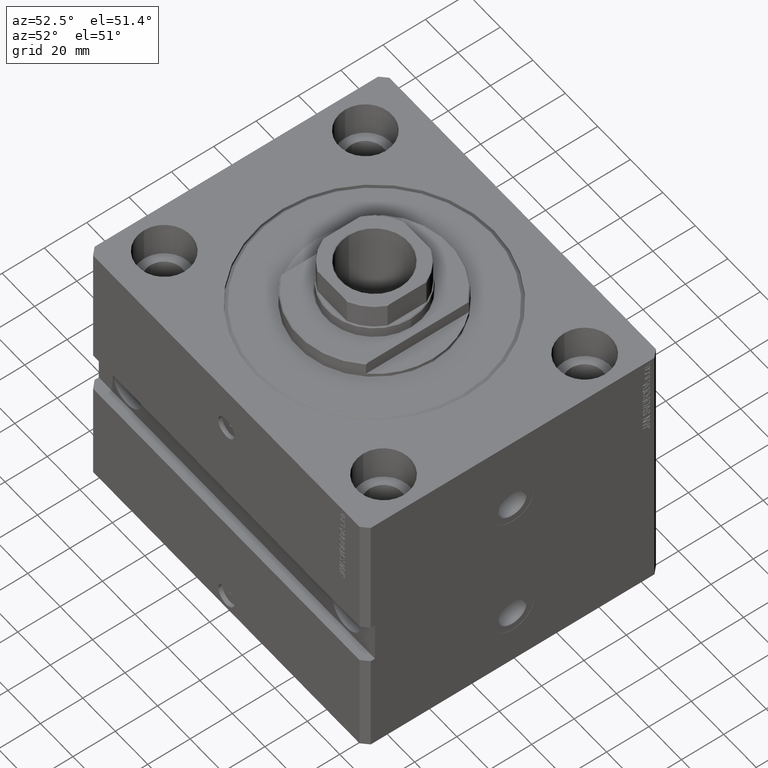
[diagram: clean part render]
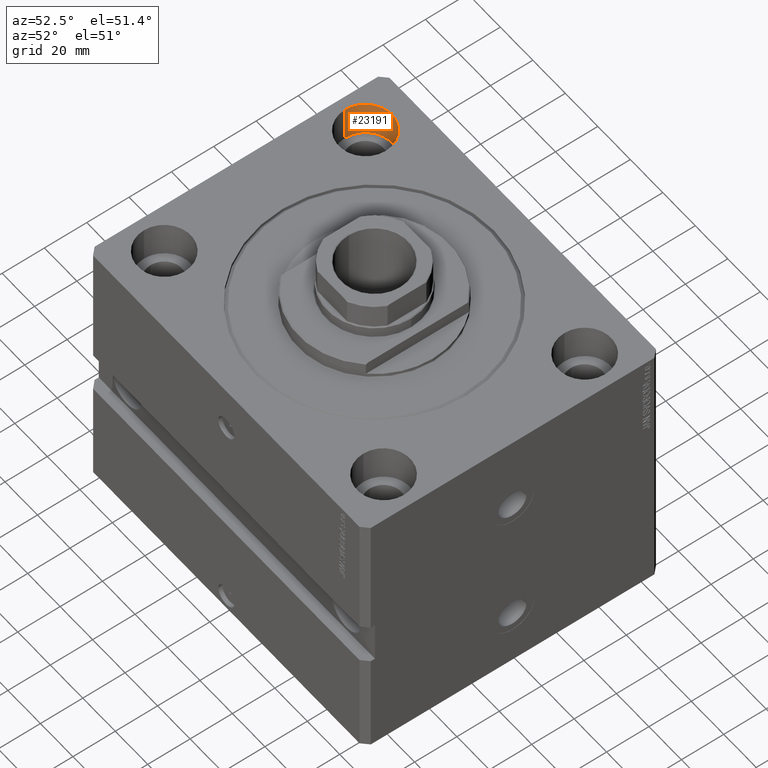
[diagram: same view with one face highlighted and labeled with its STEP entity id]
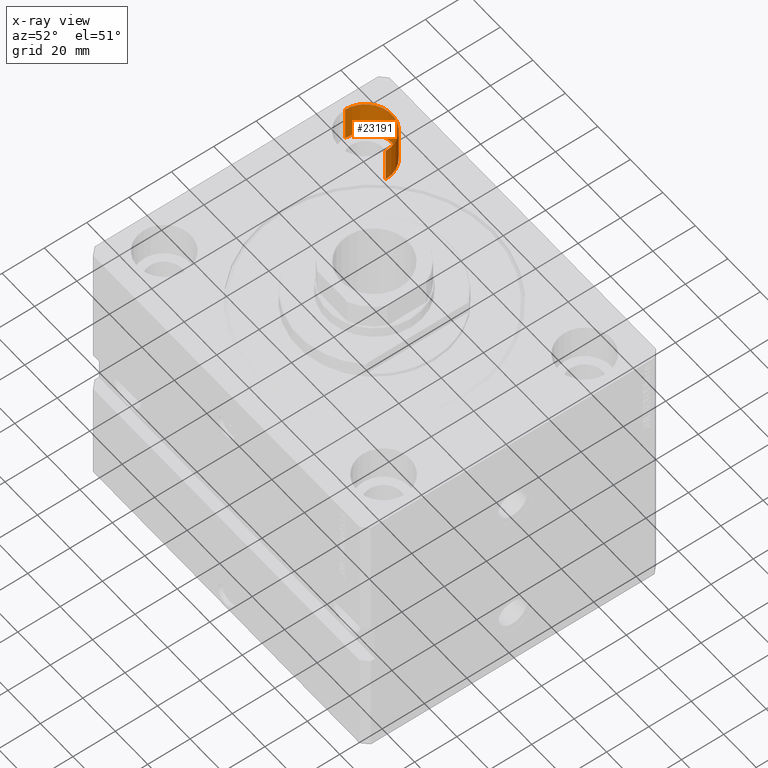
[diagram: x-ray of the same camera — body ghosted, the highlighted face saturated]
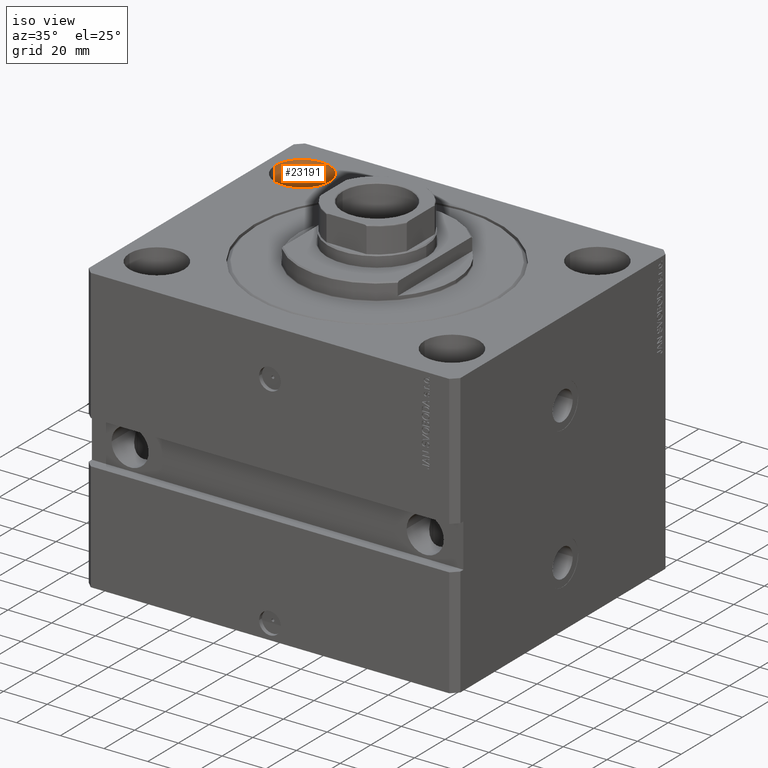
[diagram: same view with one face highlighted and labeled with its STEP entity id]
A machine part, auxiliary view. The second image highlights one B-rep face of the part: STEP entity #23191.
The next image is the same camera in x-ray: the body ghosted, the highlighted face saturated — about 0% of this face is hidden behind the body in this view.
A second angle (iso view) of the same face is appended — the face is thin or edge-on in the first view.
In plain terms, the highlighted cylindrical surface (edge-blend (fillet) strip) has radius 12.5 mm, axis along (0, 0, 1).
Its self-contained STEP definition (entity closure, byte-faithful):
#121 = AXIS2_PLACEMENT_3D ( 'NONE', #28892, #44008, #10085 ) ;
#1926 = VERTEX_POINT ( 'NONE', #40199 ) ;
#5078 = VERTEX_POINT ( 'NONE', #29011 ) ;
#6111 = CIRCLE ( 'NONE', #13989, 12.49999999999999645 ) ;
#8754 = CARTESIAN_POINT ( 'NONE',  ( -80.00000000000000000, 47.50000000000000000, -17.00000000000000000 ) ) ;
#9818 = DIRECTION ( 'NONE',  ( 1.000000000000000000, 0.000000000000000000, 0.000000000000000000 ) ) ;
#10085 = DIRECTION ( 'NONE',  ( 1.000000000000000000, 0.000000000000000000, 0.000000000000000000 ) ) ;
#10305 = DIRECTION ( 'NONE',  ( 0.000000000000000000, 0.000000000000000000, 1.000000000000000000 ) ) ;
#10373 = VECTOR ( 'NONE', #33934, 1000.000000000000000 ) ;
#10922 = EDGE_LOOP ( 'NONE', ( #46802, #47548, #29956, #14678 ) ) ;
#11820 = EDGE_CURVE ( 'NONE', #40445, #5078, #6111, .T. ) ;
#13546 = CYLINDRICAL_SURFACE ( 'NONE', #121, 12.49999999999999645 ) ;
#13989 = AXIS2_PLACEMENT_3D ( 'NONE', #33104, #10305, #9818 ) ;
#14398 = CIRCLE ( 'NONE', #32604, 12.49999999999999645 ) ;
#14678 = ORIENTED_EDGE ( 'NONE', *, *, #11820, .T. ) ;
#15104 = CARTESIAN_POINT ( 'NONE',  ( -55.00000000000000711, 47.50000000000000000, -17.00000000000000000 ) ) ;
#20434 = CARTESIAN_POINT ( 'NONE',  ( -80.00000000000000000, 47.50000000000000000, -17.00000000000000000 ) ) ;
#20638 = EDGE_CURVE ( 'NONE', #1926, #40445, #40629, .T. ) ;
#23191 = ADVANCED_FACE ( 'NONE', ( #47697 ), #13546, .F. ) ;
#25120 = LINE ( 'NONE', #20434, #34482 ) ;
#25819 = EDGE_CURVE ( 'NONE', #1926, #29628, #14398, .T. ) ;
#28351 = DIRECTION ( 'NONE',  ( -0.000000000000000000, -0.000000000000000000, 1.000000000000000000 ) ) ;
#28892 = CARTESIAN_POINT ( 'NONE',  ( -67.50000000000000000, 47.50000000000000000, -17.00000000000000000 ) ) ;
#29011 = CARTESIAN_POINT ( 'NONE',  ( -80.00000000000000000, 47.50000000000000000, 0.000000000000000000 ) ) ;
#29628 = VERTEX_POINT ( 'NONE', #8754 ) ;
#29956 = ORIENTED_EDGE ( 'NONE', *, *, #20638, .T. ) ;
#32604 = AXIS2_PLACEMENT_3D ( 'NONE', #45910, #35031, #46645 ) ;
#33104 = CARTESIAN_POINT ( 'NONE',  ( -67.50000000000000000, 47.50000000000000000, 0.000000000000000000 ) ) ;
#33934 = DIRECTION ( 'NONE',  ( -0.000000000000000000, -0.000000000000000000, 1.000000000000000000 ) ) ;
#34482 = VECTOR ( 'NONE', #28351, 1000.000000000000000 ) ;
#35031 = DIRECTION ( 'NONE',  ( 0.000000000000000000, 0.000000000000000000, 1.000000000000000000 ) ) ;
#38091 = EDGE_CURVE ( 'NONE', #29628, #5078, #25120, .T. ) ;
#40199 = CARTESIAN_POINT ( 'NONE',  ( -55.00000000000000711, 47.50000000000000000, -17.00000000000000000 ) ) ;
#40445 = VERTEX_POINT ( 'NONE', #44580 ) ;
#40629 = LINE ( 'NONE', #15104, #10373 ) ;
#44008 = DIRECTION ( 'NONE',  ( -0.000000000000000000, -0.000000000000000000, 1.000000000000000000 ) ) ;
#44580 = CARTESIAN_POINT ( 'NONE',  ( -55.00000000000000711, 47.50000000000000000, 0.000000000000000000 ) ) ;
#45910 = CARTESIAN_POINT ( 'NONE',  ( -67.50000000000000000, 47.50000000000000000, -17.00000000000000000 ) ) ;
#46645 = DIRECTION ( 'NONE',  ( 1.000000000000000000, 0.000000000000000000, 0.000000000000000000 ) ) ;
#46802 = ORIENTED_EDGE ( 'NONE', *, *, #38091, .F. ) ;
#47548 = ORIENTED_EDGE ( 'NONE', *, *, #25819, .F. ) ;
#47697 = FACE_OUTER_BOUND ( 'NONE', #10922, .T. ) ;